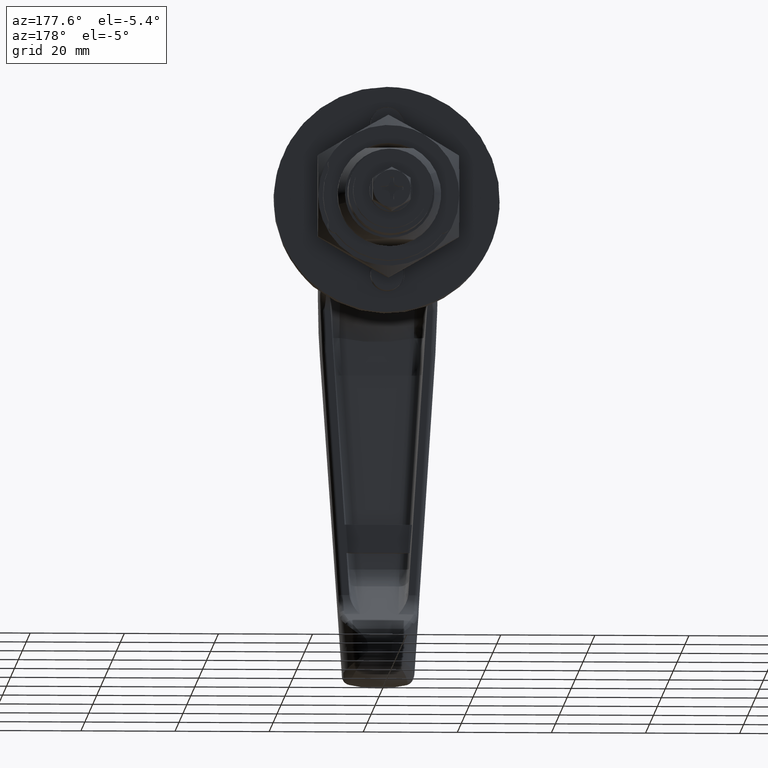
[diagram: clean part render]
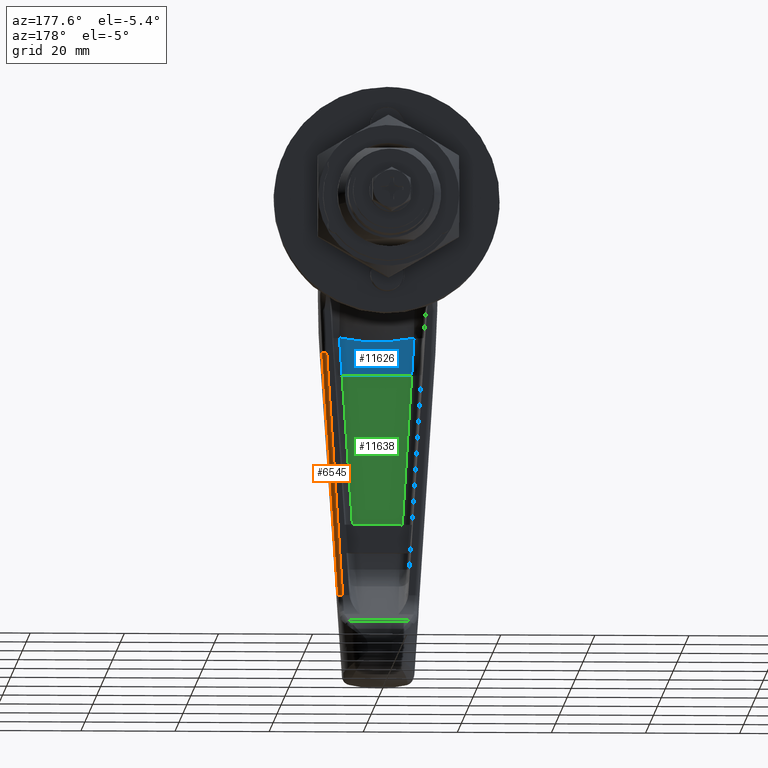
[diagram: same view with three faces highlighted in distinct colors, each labeled with its STEP entity id]
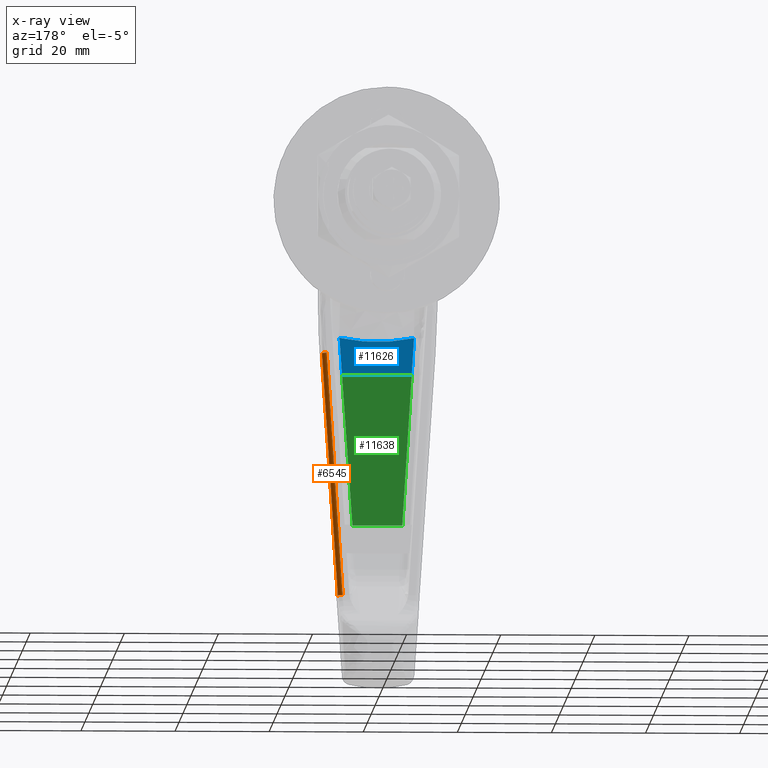
[diagram: x-ray of the same camera — body ghosted, the three highlighted faces saturated]
A machine part, auxiliary view with three faces highlighted in distinct colors.
The next image is the same camera in x-ray (body ghosted, the three faces saturated) — at least one of them is partly hidden behind the body in this view.
Their STEP definitions:

[orange] entity #6545 — the highlighted face is a freeform B-spline surface patch.
#6452=CARTESIAN_POINT('',(-42.0,-12.073825769527300,-28.897936895261651));
#6453=VERTEX_POINT('',#6452);
#6454=CARTESIAN_POINT('',(-41.0,-11.075956640679680,-28.832689660125901));
#6455=VERTEX_POINT('',#6454);
#6456=CARTESIAN_POINT('',(-42.0,-12.073825769527300,-28.897936895261640));
#6457=CARTESIAN_POINT('',(-41.0,-12.073825769527300,-28.897936895261637));
#6458=CARTESIAN_POINT('',(-41.0,-11.075956640679660,-28.832689660125901));
#6466=(BOUNDED_CURVE()B_SPLINE_CURVE(2,(#6456,#6457,#6458),.UNSPECIFIED.,.F.,.U.)CURVE()GEOMETRIC_REPRESENTATION_ITEM()QUASI_UNIFORM_CURVE()RATIONAL_B_SPLINE_CURVE((1.0,0.707106781186548,1.0))REPRESENTATION_ITEM(''));
#6467=EDGE_CURVE('',#6453,#6455,#6466,.T.);
#6499=CARTESIAN_POINT('',(-42.026176948307992,-12.157966582344359,-27.605863837522840));
#6500=CARTESIAN_POINT('',(-42.026176948307992,-8.607578692301257,-81.904294468918820));
#6501=CARTESIAN_POINT('',(-40.925014786340313,-12.186740084798103,-27.607745238025171));
#6502=CARTESIAN_POINT('',(-40.925014786340313,-8.636352194754997,-81.906175869421133));
#6503=CARTESIAN_POINT('',(-41.002475546877214,-11.090268794031370,-27.536050746172453));
#6504=CARTESIAN_POINT('',(-41.002475546877214,-7.539880903988268,-81.834481377568423));
#6512=(BOUNDED_SURFACE()B_SPLINE_SURFACE(1,2,((#6499,#6501,#6503),(#6500,#6502,#6504)),.UNSPECIFIED.,.F.,.F.,.U.)B_SPLINE_SURFACE_WITH_KNOTS((2,2),(3,3),(0.0,54.414380665429661),(0.0,0.994518882661778),.UNSPECIFIED.)GEOMETRIC_REPRESENTATION_ITEM()RATIONAL_B_SPLINE_SURFACE(((1.0,0.670944140329031,0.996392812444628),(1.0,0.670944140329031,0.996392812444628)))REPRESENTATION_ITEM('')SURFACE());
#6513=CARTESIAN_POINT('',(-42.0,-8.694515463715909,-80.579964860897306));
#6514=VERTEX_POINT('',#6513);
#6515=CARTESIAN_POINT('',(-41.0,-7.696646334868170,-80.514717625761492));
#6516=VERTEX_POINT('',#6515);
#6517=CARTESIAN_POINT('',(-42.0,-8.694515463715906,-80.579964860897249));
#6518=CARTESIAN_POINT('',(-41.585786437626886,-8.694515463715906,-80.579964860897249));
#6519=CARTESIAN_POINT('',(-41.292893218813433,-8.402246362613111,-80.560854388179649));
#6520=CARTESIAN_POINT('',(-41.0,-8.109977261510357,-80.541743915462064));
#6521=CARTESIAN_POINT('',(-41.0,-7.696646334868270,-80.514717625761492));
#6529=(BOUNDED_CURVE()B_SPLINE_CURVE(2,(#6517,#6518,#6519,#6520,#6521),.UNSPECIFIED.,.F.,.U.)B_SPLINE_CURVE_WITH_KNOTS((3,2,3),(0.0,0.500000000000000,1.0),.UNSPECIFIED.)CURVE()GEOMETRIC_REPRESENTATION_ITEM()RATIONAL_B_SPLINE_CURVE((1.0,0.923879532511277,1.0,0.923879532511277,1.0))REPRESENTATION_ITEM(''));
#6530=EDGE_CURVE('',#6514,#6516,#6529,.T.);
#6531=ORIENTED_EDGE('',*,*,#6530,.T.);
#6532=CARTESIAN_POINT('',(-41.0,-11.075956640679680,-28.832689660125901));
#6533=CARTESIAN_POINT('',(-41.0,-7.696646334868170,-80.514717625761492));
#6534=QUASI_UNIFORM_CURVE('',1,(#6532,#6533),.UNSPECIFIED.,.F.,.U.);
#6535=EDGE_CURVE('',#6455,#6516,#6534,.T.);
#6536=ORIENTED_EDGE('',*,*,#6535,.F.);
#6537=ORIENTED_EDGE('',*,*,#6467,.F.);
#6538=CARTESIAN_POINT('',(-42.0,-8.694515463715909,-80.579964860897306));
#6539=CARTESIAN_POINT('',(-42.0,-12.073825769527300,-28.897936895261651));
#6540=QUASI_UNIFORM_CURVE('',1,(#6538,#6539),.UNSPECIFIED.,.F.,.U.);
#6541=EDGE_CURVE('',#6514,#6453,#6540,.T.);
#6542=ORIENTED_EDGE('',*,*,#6541,.F.);
#6543=EDGE_LOOP('',(#6531,#6536,#6537,#6542));
#6544=FACE_OUTER_BOUND('',#6543,.T.);
#6545=ADVANCED_FACE('',(#6544),#6512,.T.);

[blue] entity #11626 — the highlighted face is a freeform B-spline surface patch.
#10631=CARTESIAN_POINT('',(-50.871255789139212,-7.398278548856220,-32.746703629383902));
#10632=VERTEX_POINT('',#10631);
#10691=CARTESIAN_POINT('',(-51.348844931529896,-7.917446002940620,-24.725503491098149));
#10692=VERTEX_POINT('',#10691);
#10720=CARTESIAN_POINT('',(-50.871255789139212,-7.398278548856220,-32.746703629383902));
#10721=CARTESIAN_POINT('',(-51.191654038498086,-7.657547795550872,-28.740962316445351));
#10722=CARTESIAN_POINT('',(-51.348844931529896,-7.917446002940620,-24.725503491098149));
#10730=(BOUNDED_CURVE()B_SPLINE_CURVE(2,(#10720,#10721,#10722),.UNSPECIFIED.,.F.,.U.)CURVE()GEOMETRIC_REPRESENTATION_ITEM()QUASI_UNIFORM_CURVE()RATIONAL_B_SPLINE_CURVE((1.0,0.999793063852567,1.0))REPRESENTATION_ITEM(''));
#10731=EDGE_CURVE('',#10632,#10692,#10730,.T.);
#11133=CARTESIAN_POINT('',(-50.871255789139212,7.398278548835680,-32.746703629383902));
#11134=VERTEX_POINT('',#11133);
#11176=CARTESIAN_POINT('',(-51.348844931529896,7.917446002939130,-24.725503491098451));
#11177=VERTEX_POINT('',#11176);
#11193=CARTESIAN_POINT('',(-51.348844931529896,7.917446002939130,-24.725503491098451));
#11194=CARTESIAN_POINT('',(-51.191654057933754,7.657547827685778,-28.740961819959626));
#11195=CARTESIAN_POINT('',(-50.871255789139212,7.398278548835680,-32.746703629383902));
#11203=(BOUNDED_CURVE()B_SPLINE_CURVE(2,(#11193,#11194,#11195),.UNSPECIFIED.,.F.,.U.)CURVE()GEOMETRIC_REPRESENTATION_ITEM()QUASI_UNIFORM_CURVE()RATIONAL_B_SPLINE_CURVE((1.0,0.999793063904155,1.0))REPRESENTATION_ITEM(''));
#11204=EDGE_CURVE('',#11177,#11134,#11203,.T.);
#11544=CARTESIAN_POINT('',(-51.348844931529896,-7.917446002940618,-24.725503491098149));
#11545=CARTESIAN_POINT('',(-51.337869253556512,-6.616730629748216,-25.005878404252549));
#11546=CARTESIAN_POINT('',(-51.329066461484068,-5.306585961793548,-25.216413056628220));
#11547=CARTESIAN_POINT('',(-51.317123435190837,-2.667510879736255,-25.498394750750919));
#11548=CARTESIAN_POINT('',(-51.313982445634913,-1.338581595493655,-25.569850141262862));
#11549=CARTESIAN_POINT('',(-51.313982445634913,1.338581595493939,-25.569850141262862));
#11550=CARTESIAN_POINT('',(-51.317123435190823,2.667510879734740,-25.498394750751039));
#11551=CARTESIAN_POINT('',(-51.329066461484061,5.306585961792049,-25.216413056628440));
#11552=CARTESIAN_POINT('',(-51.337869253556491,6.616730629746728,-25.005878404252819));
#11553=CARTESIAN_POINT('',(-51.348844931529882,7.917446002939135,-24.725503491098468));
#11554=B_SPLINE_CURVE_WITH_KNOTS('',3,(#11544,#11545,#11546,#11547,#11548,#11549,#11550,#11551,#11552,#11553),.UNSPECIFIED.,.F.,.U.,(4,2,2,2,4),(0.0,0.250000000000000,0.500000000000000,0.750000000000000,1.0),.UNSPECIFIED.);
#11555=EDGE_CURVE('',#10692,#11177,#11554,.T.);
#11602=CARTESIAN_POINT('',(-50.838853419228570,8.313318303086124,-33.146695779739041));
#11603=CARTESIAN_POINT('',(-50.838853419228570,-8.323215110591288,-33.146695779739041));
#11604=CARTESIAN_POINT('',(-51.200219096136777,8.313318303086124,-28.741410235378190));
#11605=CARTESIAN_POINT('',(-51.200219096136777,-8.323215110591287,-28.741410235378190));
#11606=CARTESIAN_POINT('',(-51.364139658532437,8.313318303086122,-24.324368699573288));
#11607=CARTESIAN_POINT('',(-51.364139658532437,-8.323215110591287,-24.324368699573288));
#11615=(BOUNDED_SURFACE()B_SPLINE_SURFACE(1,2,((#11602,#11604,#11606),(#11603,#11605,#11607)),.UNSPECIFIED.,.F.,.F.,.U.)B_SPLINE_SURFACE_WITH_KNOTS((2,2),(3,3),(0.0,16.636533413677409),(4.772158839821816,13.611685058951380),.UNSPECIFIED.)GEOMETRIC_REPRESENTATION_ITEM()RATIONAL_B_SPLINE_SURFACE(((0.999408271732137,0.998995295285729,0.999082651176717),(0.999408271732137,0.998995295285729,0.999082651176717)))REPRESENTATION_ITEM('')SURFACE());
#11616=ORIENTED_EDGE('',*,*,#11555,.F.);
#11617=ORIENTED_EDGE('',*,*,#10731,.F.);
#11618=CARTESIAN_POINT('',(-50.871255789139212,7.398278548835680,-32.746703629383902));
#11619=CARTESIAN_POINT('',(-50.871255789139212,-7.398278548856220,-32.746703629383902));
#11620=QUASI_UNIFORM_CURVE('',1,(#11618,#11619),.UNSPECIFIED.,.F.,.U.);
#11621=EDGE_CURVE('',#11134,#10632,#11620,.T.);
#11622=ORIENTED_EDGE('',*,*,#11621,.F.);
#11623=ORIENTED_EDGE('',*,*,#11204,.F.);
#11624=EDGE_LOOP('',(#11616,#11617,#11622,#11623));
#11625=FACE_OUTER_BOUND('',#11624,.T.);
#11626=ADVANCED_FACE('',(#11625),#11615,.F.);

[green] entity #11638 — the highlighted face is a freeform B-spline surface patch.
#10456=CARTESIAN_POINT('',(-48.291482940821602,5.289346666033780,-65.0));
#10457=VERTEX_POINT('',#10456);
#10471=CARTESIAN_POINT('',(-48.291482940821602,-5.289346666033820,-65.0));
#10472=VERTEX_POINT('',#10471);
#10473=CARTESIAN_POINT('',(-48.291482940821602,-5.289346666033820,-65.0));
#10474=CARTESIAN_POINT('',(-48.291482940821602,5.289346666033780,-65.0));
#10475=QUASI_UNIFORM_CURVE('',1,(#10473,#10474),.UNSPECIFIED.,.F.,.U.);
#10476=EDGE_CURVE('',#10472,#10457,#10475,.T.);
#10631=CARTESIAN_POINT('',(-50.871255789139212,-7.398278548856220,-32.746703629383902));
#10632=VERTEX_POINT('',#10631);
#10633=CARTESIAN_POINT('',(-48.291482940821602,-5.289346666033820,-65.0));
#10634=CARTESIAN_POINT('',(-50.871255789139212,-7.398278548856220,-32.746703629383902));
#10635=QUASI_UNIFORM_CURVE('',1,(#10633,#10634),.UNSPECIFIED.,.F.,.U.);
#10636=EDGE_CURVE('',#10472,#10632,#10635,.T.);
#11133=CARTESIAN_POINT('',(-50.871255789139212,7.398278548835680,-32.746703629383902));
#11134=VERTEX_POINT('',#11133);
#11148=CARTESIAN_POINT('',(-50.871255789139212,7.398278548835680,-32.746703629383902));
#11149=CARTESIAN_POINT('',(-48.291482940821602,5.289346666033780,-65.0));
#11150=QUASI_UNIFORM_CURVE('',1,(#11148,#11149),.UNSPECIFIED.,.F.,.U.);
#11151=EDGE_CURVE('',#11134,#10457,#11150,.T.);
#11618=CARTESIAN_POINT('',(-50.871255789139212,7.398278548835680,-32.746703629383902));
#11619=CARTESIAN_POINT('',(-50.871255789139212,-7.398278548856220,-32.746703629383902));
#11620=QUASI_UNIFORM_CURVE('',1,(#11618,#11619),.UNSPECIFIED.,.F.,.U.);
#11621=EDGE_CURVE('',#11134,#10632,#11620,.T.);
#11627=CARTESIAN_POINT('',(-48.162623301265000,-8.137366825006312,-66.611051975967698));
#11628=CARTESIAN_POINT('',(-51.000115313370969,-8.137366825006312,-31.135653095250909));
#11629=CARTESIAN_POINT('',(-48.162623301265000,8.137366957277303,-66.611051975967698));
#11630=CARTESIAN_POINT('',(-51.000115313370969,8.137366957277303,-31.135653095250909));
#11631=B_SPLINE_SURFACE_WITH_KNOTS('',1,1,((#11627,#11629),(#11628,#11630)),.UNSPECIFIED.,.F.,.F.,.U.,(2,2),(2,2),(0.0,35.588696051762383),(0.0,16.274733782283619),.UNSPECIFIED.);
#11632=ORIENTED_EDGE('',*,*,#10476,.T.);
#11633=ORIENTED_EDGE('',*,*,#11151,.F.);
#11634=ORIENTED_EDGE('',*,*,#11621,.T.);
#11635=ORIENTED_EDGE('',*,*,#10636,.F.);
#11636=EDGE_LOOP('',(#11632,#11633,#11634,#11635));
#11637=FACE_OUTER_BOUND('',#11636,.T.);
#11638=ADVANCED_FACE('',(#11637),#11631,.F.);